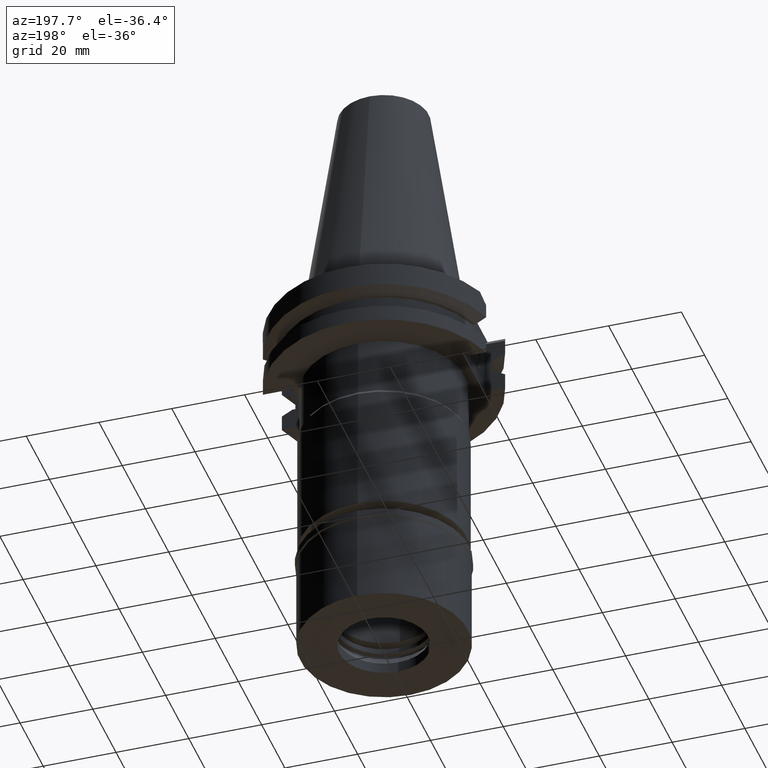
[diagram: clean part render]
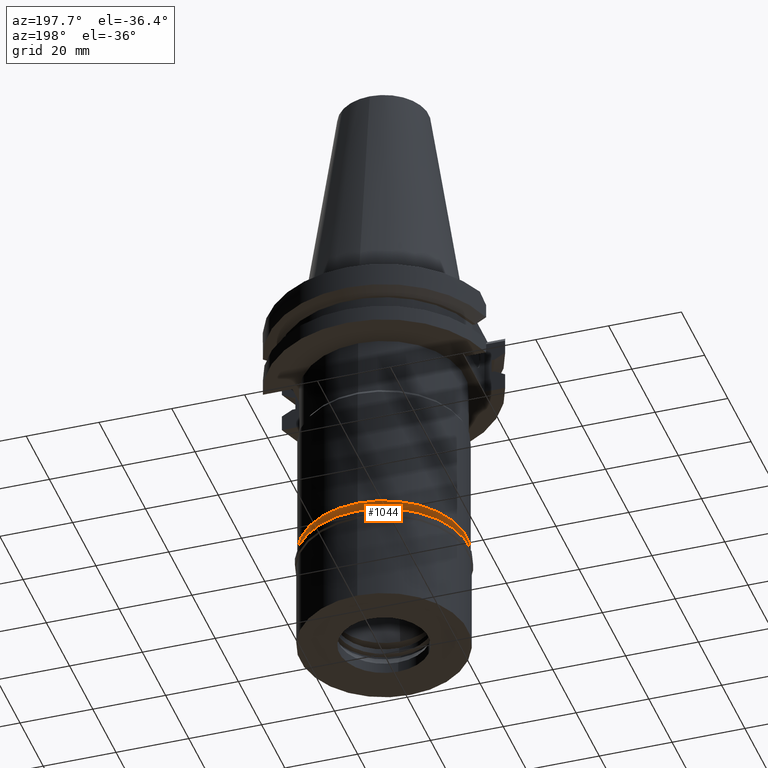
[diagram: same view with one face highlighted and labeled with its STEP entity id]
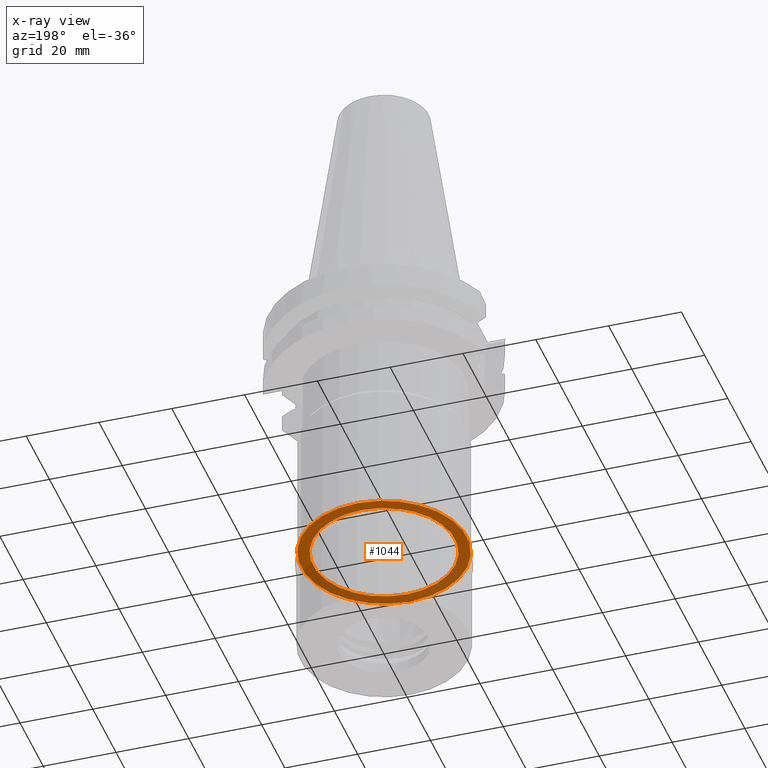
[diagram: x-ray of the same camera — body ghosted, the highlighted face saturated]
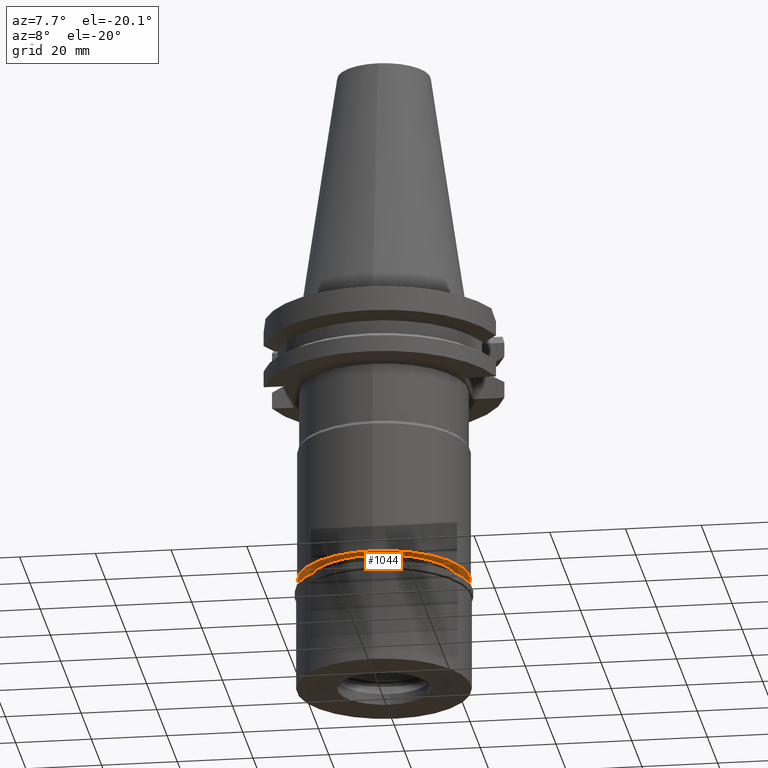
[diagram: same view with one face highlighted and labeled with its STEP entity id]
A machine part, auxiliary view. The second image highlights one B-rep face of the part: STEP entity #1044.
The next image is the same camera in x-ray: the body ghosted, the highlighted face saturated — about 40% of this face is hidden behind the body in this view.
A second angle (auxiliary view) of the same face is appended — the face is thin or edge-on in the first view.
In plain terms, the highlighted planar face has unit normal (0, 0, -1).
Its self-contained STEP definition (entity closure, byte-faithful):
#5 = DIRECTION ( 'NONE',  ( 0.0000000000000000000, 1.000000000000000000, 0.0000000000000000000 ) ) ;
#66 = DIRECTION ( 'NONE',  ( 0.0000000000000000000, -1.000000000000000000, 0.0000000000000000000 ) ) ;
#165 = DIRECTION ( 'NONE',  ( 0.0000000000000000000, 0.0000000000000000000, 1.000000000000000000 ) ) ;
#235 = VERTEX_POINT ( 'NONE', #1606 ) ;
#281 = EDGE_LOOP ( 'NONE', ( #2115, #2722 ) ) ;
#298 = ORIENTED_EDGE ( 'NONE', *, *, #341, .F. ) ;
#337 = CARTESIAN_POINT ( 'NONE',  ( 0.0000000000000000000, 2.157735811588000074E-14, -71.40000000000000568 ) ) ;
#341 = EDGE_CURVE ( 'NONE', #235, #2333, #2533, .T. ) ;
#344 = CARTESIAN_POINT ( 'NONE',  ( 0.0000000000000000000, 2.157735811588000074E-14, -71.40000000000000568 ) ) ;
#447 = CARTESIAN_POINT ( 'NONE',  ( 0.0000000000000000000, 0.0000000000000000000, -71.40000000000000568 ) ) ;
#495 = CARTESIAN_POINT ( 'NONE',  ( 0.0000000000000000000, -22.75000000000000000, -71.40000000000000568 ) ) ;
#557 = DIRECTION ( 'NONE',  ( 0.0000000000000000000, 0.0000000000000000000, -1.000000000000000000 ) ) ;
#645 = CARTESIAN_POINT ( 'NONE',  ( 0.0000000000000000000, 19.50000000000000000, -71.40000000000000568 ) ) ;
#647 = DIRECTION ( 'NONE',  ( 0.0000000000000000000, -1.000000000000000000, 0.0000000000000000000 ) ) ;
#653 = CARTESIAN_POINT ( 'NONE',  ( 0.0000000000000000000, 2.157735811588000074E-14, -71.40000000000000568 ) ) ;
#770 = EDGE_CURVE ( 'NONE', #3082, #1419, #2482, .T. ) ;
#867 = AXIS2_PLACEMENT_3D ( 'NONE', #344, #1344, #2755 ) ;
#944 = FACE_BOUND ( 'NONE', #1305, .T. ) ;
#1044 = ADVANCED_FACE ( 'NONE', ( #2917, #944 ), #2725, .T. ) ;
#1189 = AXIS2_PLACEMENT_3D ( 'NONE', #1508, #2266, #5 ) ;
#1227 = EDGE_CURVE ( 'NONE', #1419, #3082, #2296, .T. ) ;
#1305 = EDGE_LOOP ( 'NONE', ( #2428, #298 ) ) ;
#1344 = DIRECTION ( 'NONE',  ( 0.0000000000000000000, 0.0000000000000000000, 1.000000000000000000 ) ) ;
#1419 = VERTEX_POINT ( 'NONE', #2605 ) ;
#1508 = CARTESIAN_POINT ( 'NONE',  ( 0.0000000000000000000, 2.157735811588000074E-14, -71.40000000000000568 ) ) ;
#1606 = CARTESIAN_POINT ( 'NONE',  ( 0.0000000000000000000, -19.50000000000000000, -71.40000000000000568 ) ) ;
#1858 = AXIS2_PLACEMENT_3D ( 'NONE', #447, #557, #66 ) ;
#1877 = CIRCLE ( 'NONE', #1189, 19.50000000000000000 ) ;
#1890 = DIRECTION ( 'NONE',  ( 0.0000000000000000000, 0.0000000000000000000, -1.000000000000000000 ) ) ;
#2115 = ORIENTED_EDGE ( 'NONE', *, *, #1227, .F. ) ;
#2130 = AXIS2_PLACEMENT_3D ( 'NONE', #653, #165, #2609 ) ;
#2266 = DIRECTION ( 'NONE',  ( 0.0000000000000000000, 0.0000000000000000000, -1.000000000000000000 ) ) ;
#2296 = CIRCLE ( 'NONE', #867, 22.75000000000000000 ) ;
#2333 = VERTEX_POINT ( 'NONE', #645 ) ;
#2428 = ORIENTED_EDGE ( 'NONE', *, *, #2686, .F. ) ;
#2482 = CIRCLE ( 'NONE', #2130, 22.75000000000000000 ) ;
#2533 = CIRCLE ( 'NONE', #3103, 19.50000000000000000 ) ;
#2605 = CARTESIAN_POINT ( 'NONE',  ( 0.0000000000000000000, 22.75000000000000000, -71.40000000000000568 ) ) ;
#2609 = DIRECTION ( 'NONE',  ( 0.0000000000000000000, -1.000000000000000000, 0.0000000000000000000 ) ) ;
#2686 = EDGE_CURVE ( 'NONE', #2333, #235, #1877, .T. ) ;
#2722 = ORIENTED_EDGE ( 'NONE', *, *, #770, .F. ) ;
#2725 = PLANE ( 'NONE',  #1858 ) ;
#2755 = DIRECTION ( 'NONE',  ( 0.0000000000000000000, 1.000000000000000000, 0.0000000000000000000 ) ) ;
#2917 = FACE_OUTER_BOUND ( 'NONE', #281, .T. ) ;
#3082 = VERTEX_POINT ( 'NONE', #495 ) ;
#3103 = AXIS2_PLACEMENT_3D ( 'NONE', #337, #1890, #647 ) ;